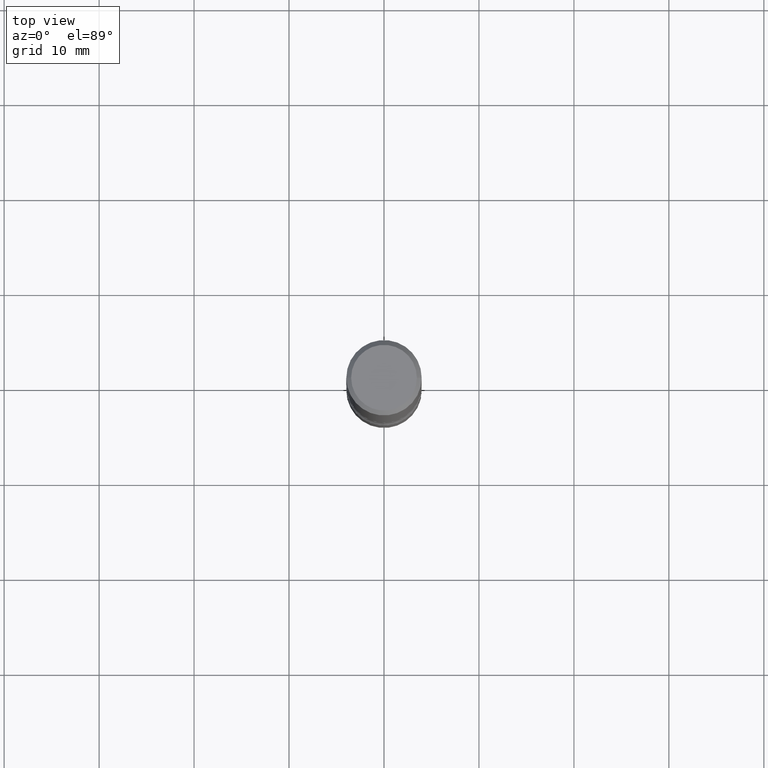
[diagram: clean part render]
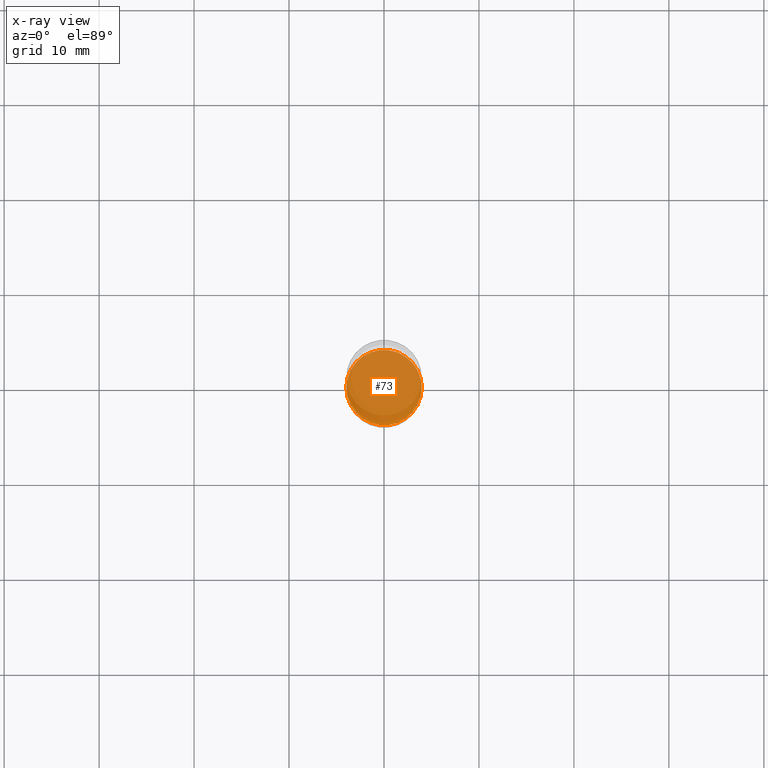
[diagram: x-ray — body ghosted, one internal face saturated and labeled with its STEP entity id]
A machine part, top view, then the same camera in x-ray: the body is ghosted and one INTERNAL B-rep face — a face not visible from any outside direction — is saturated and labeled: STEP entity #73.
In plain terms, the highlighted planar face has unit normal (0, -0, -1).
Its self-contained STEP definition (entity closure, byte-faithful):
#11 = DIRECTION ( 'NONE',  ( 1.000000000000000000, -6.982962677686270655E-15, 0.000000000000000000 ) ) ;
#67 = ORIENTED_EDGE ( 'NONE', *, *, #383, .T. ) ;
#73 = ADVANCED_FACE ( 'NONE', ( #388 ), #132, .F. ) ;
#110 = CIRCLE ( 'NONE', #548, 0.1562500000000001110 ) ;
#132 = PLANE ( 'NONE',  #334 ) ;
#138 = DIRECTION ( 'NONE',  ( -2.445468806185136597E-29, 3.491481338843145583E-15, 1.000000000000000000 ) ) ;
#203 = EDGE_CURVE ( 'NONE', #204, #236, #209, .T. ) ;
#204 = VERTEX_POINT ( 'NONE', #525 ) ;
#209 = CIRCLE ( 'NONE', #484, 0.1562500000000001110 ) ;
#223 = CARTESIAN_POINT ( 'NONE',  ( 5.807988414689700538E-29, -8.292268179752471696E-15, -2.375000000000000444 ) ) ;
#236 = VERTEX_POINT ( 'NONE', #354 ) ;
#278 = ORIENTED_EDGE ( 'NONE', *, *, #203, .T. ) ;
#309 = EDGE_LOOP ( 'NONE', ( #67, #278 ) ) ;
#334 = AXIS2_PLACEMENT_3D ( 'NONE', #223, #479, #560 ) ;
#354 = CARTESIAN_POINT ( 'NONE',  ( 0.1562500000000001110, -9.383356098140953236E-15, -2.375000000000000444 ) ) ;
#383 = EDGE_CURVE ( 'NONE', #236, #204, #110, .T. ) ;
#388 = FACE_OUTER_BOUND ( 'NONE', #309, .T. ) ;
#416 = CARTESIAN_POINT ( 'NONE',  ( 5.807988414689700538E-29, -8.292268179752471696E-15, -2.375000000000000444 ) ) ;
#449 = CARTESIAN_POINT ( 'NONE',  ( 5.807988414689700538E-29, -8.292268179752471696E-15, -2.375000000000000444 ) ) ;
#479 = DIRECTION ( 'NONE',  ( 2.438088387897960049E-29, -3.491481338843145188E-15, -1.000000000000000000 ) ) ;
#484 = AXIS2_PLACEMENT_3D ( 'NONE', #449, #138, #497 ) ;
#497 = DIRECTION ( 'NONE',  ( 1.000000000000000000, -6.982962677686270655E-15, 0.000000000000000000 ) ) ;
#525 = CARTESIAN_POINT ( 'NONE',  ( -0.1562500000000001110, -8.255675666821583237E-15, -2.375000000000000444 ) ) ;
#548 = AXIS2_PLACEMENT_3D ( 'NONE', #416, #549, #11 ) ;
#549 = DIRECTION ( 'NONE',  ( -2.445468806185136597E-29, 3.491481338843145583E-15, 1.000000000000000000 ) ) ;
#560 = DIRECTION ( 'NONE',  ( -1.000000000000000000, 6.982962677686265922E-15, -4.876176775795935793E-29 ) ) ;